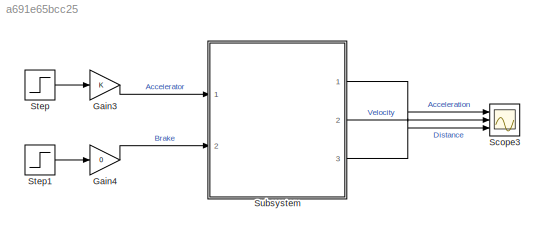
MODEL slx_a691e65bcc25
KIND model
CONFIG AbsTol = auto
CONFIG EnableMultiTasking = off
CONFIG FixedStep = auto
CONFIG MaxStep = auto
CONFIG MinStep = auto
CONFIG RelTol = 1e-3
CONFIG SampleTimeConstraint = Unconstrained
CONFIG SolverName = VariableStepAuto
CONFIG StartTime = 0.0
CONFIG StopTime = 50
BLOCK [Gain] Gain3
BLOCK [Gain] Gain4
  Gain = 0
BLOCK [Scope] Scope3
  Floating = off
  NumInputPorts = 3
  Ports = [3]
  ScopeSpecificationString = Simulink.scopes.TimeScopeBlockCfg('CurrentConfiguration', extmgr.ConfigurationSet(extmgr.Configuration('Core','General UI',true),extmgr.Configuration('Core','Source UI',true),extmgr.Configuration('Sources','WiredSimulink',true,'DataLoggingVariableName','ScopeData3'),extmgr.Configuration('Visuals','Time Domain',true,'SerializedDisplays',{struct('MinYLimReal','-330.82157','MaxYLimReal','2977.3941','...<+1504ch>
BLOCK [Step] Step
  After = 80
  SampleTime = 0
BLOCK [Step] Step1
  After = 120
  SampleTime = 0
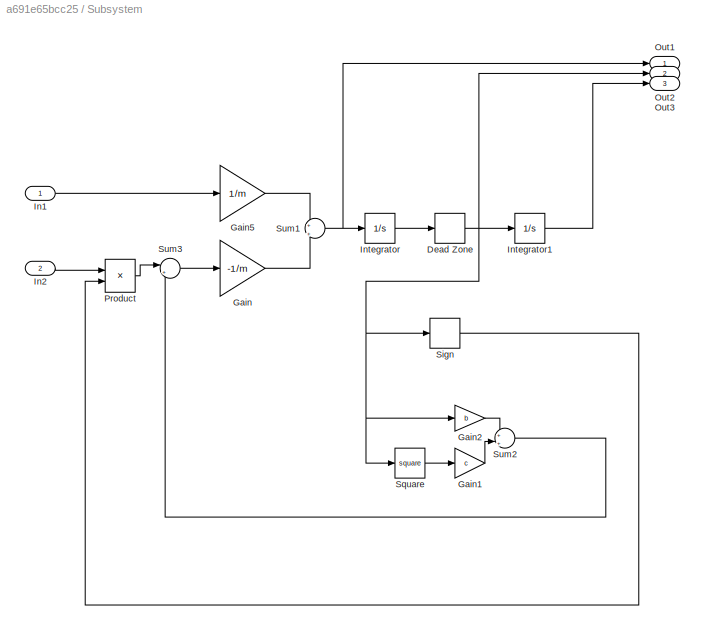
BLOCK [SubSystem] Subsystem
  Ports = [2, 3]
  RequestExecContextInheritance = off
BLOCK [DeadZone] Subsystem/Dead Zone
  LowerValue = -0.05
  UpperValue = 0.05
  ZeroCross = off
BLOCK [Gain] Subsystem/Gain
  Gain = -1/m
BLOCK [Gain] Subsystem/Gain1
  Gain = c
BLOCK [Gain] Subsystem/Gain2
  Gain = b
BLOCK [Gain] Subsystem/Gain5
  Gain = 1/m
BLOCK [Inport] Subsystem/In1
BLOCK [Inport] Subsystem/In2
  Port = 2
BLOCK [Integrator] Subsystem/Integrator
  Ports = [1, 1]
BLOCK [Integrator] Subsystem/Integrator1
  Ports = [1, 1]
BLOCK [Outport] Subsystem/Out1
BLOCK [Outport] Subsystem/Out2
  Port = 2
BLOCK [Outport] Subsystem/Out3
  Port = 3
BLOCK [Product] Subsystem/Product
  Ports = [2, 1]
BLOCK [Signum] Subsystem/Sign
  ZeroCross = off
BLOCK [Math] Subsystem/Square
  Operator = square
  Ports = [1, 1]
BLOCK [Sum] Subsystem/Sum1
  Inputs = +|+
  Ports = [2, 1]
BLOCK [Sum] Subsystem/Sum2
  Inputs = +|+
  Ports = [2, 1]
BLOCK [Sum] Subsystem/Sum3
  Inputs = |++
  Ports = [2, 1]
LINE Gain3:1 -> Subsystem:1
LINE Gain4:1 -> Subsystem:2
LINE Step1:1 -> Gain4:1
LINE Step:1 -> Gain3:1
NET Subsystem/Dead Zone:1 -> Subsystem/Gain2:1, Subsystem/Integrator1:1, Subsystem/Out2:1, Subsystem/Sign:1, Subsystem/Square:1
LINE Subsystem/Gain1:1 -> Subsystem/Sum2:2
LINE Subsystem/Gain2:1 -> Subsystem/Sum2:1
LINE Subsystem/Gain5:1 -> Subsystem/Sum1:1
LINE Subsystem/Gain:1 -> Subsystem/Sum1:2
LINE Subsystem/In1:1 -> Subsystem/Gain5:1
LINE Subsystem/In2:1 -> Subsystem/Product:1
LINE Subsystem/Integrator1:1 -> Subsystem/Out3:1
LINE Subsystem/Integrator:1 -> Subsystem/Dead Zone:1
LINE Subsystem/Product:1 -> Subsystem/Sum3:1
LINE Subsystem/Sign:1 -> Subsystem/Product:2
LINE Subsystem/Square:1 -> Subsystem/Gain1:1
NET Subsystem/Sum1:1 -> Subsystem/Integrator:1, Subsystem/Out1:1
LINE Subsystem/Sum2:1 -> Subsystem/Sum3:2
LINE Subsystem/Sum3:1 -> Subsystem/Gain:1
LINE Subsystem:1 -> Scope3:1
LINE Subsystem:2 -> Scope3:2
LINE Subsystem:3 -> Scope3:3
note: NET lines group one-source signal fan-out (src -> all destinations, sorted); 1:1 wires keep LINE
